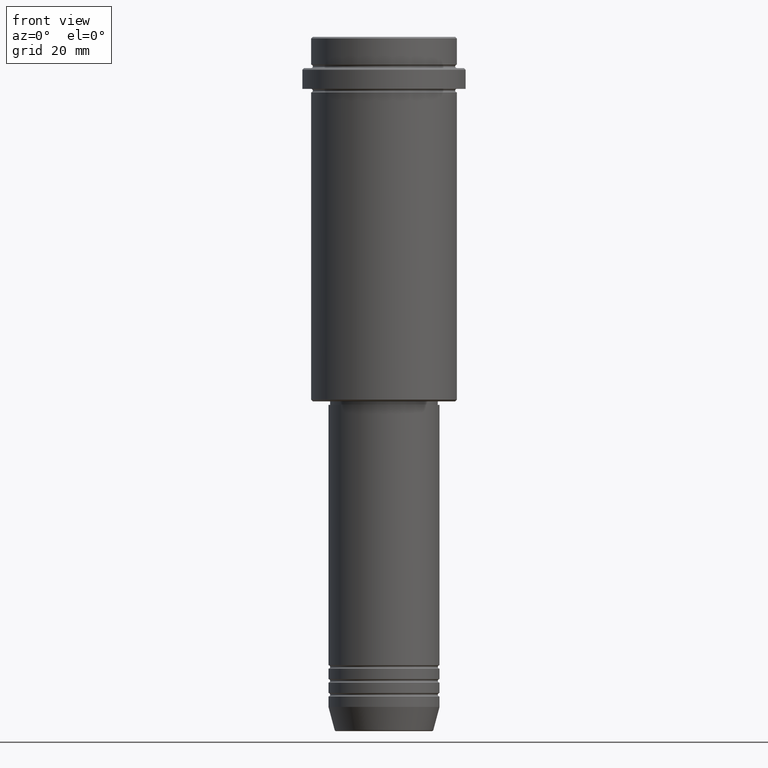
[diagram: clean part render]
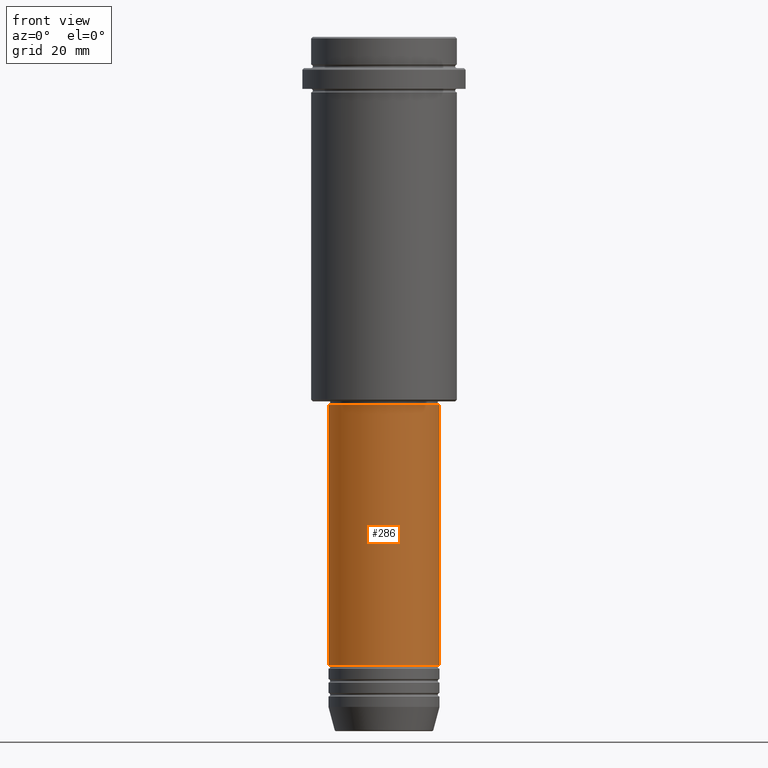
[diagram: same view with one face highlighted and labeled with its STEP entity id]
A machine part, front view. The second image highlights one B-rep face of the part: STEP entity #286.
In plain terms, the highlighted cylindrical surface (partial cylindrical patch) has radius 16 mm, axis along (-0, -0, 1).
Its self-contained STEP definition (entity closure, byte-faithful):
#1 = VERTEX_POINT ( 'NONE', #579 ) ;
#43 = EDGE_CURVE ( 'NONE', #1, #1372, #701, .T. ) ;
#55 = VERTEX_POINT ( 'NONE', #1125 ) ;
#107 = CARTESIAN_POINT ( 'NONE',  ( 0.000000000000000000, 0.000000000000000000, 0.000000000000000000 ) ) ;
#130 = CIRCLE ( 'NONE', #1228, 16.00000000000000000 ) ;
#143 = ORIENTED_EDGE ( 'NONE', *, *, #626, .F. ) ;
#172 = CIRCLE ( 'NONE', #385, 16.00000000000000355 ) ;
#175 = AXIS2_PLACEMENT_3D ( 'NONE', #107, #878, #754 ) ;
#178 = CARTESIAN_POINT ( 'NONE',  ( 16.00000000000000000, 0.000000000000000000, 0.000000000000000000 ) ) ;
#185 = DIRECTION ( 'NONE',  ( -0.000000000000000000, -0.000000000000000000, 1.000000000000000000 ) ) ;
#234 = ORIENTED_EDGE ( 'NONE', *, *, #43, .F. ) ;
#278 = VECTOR ( 'NONE', #477, 1000.000000000000000 ) ;
#286 = ADVANCED_FACE ( 'NONE', ( #1072 ), #1297, .T. ) ;
#385 = AXIS2_PLACEMENT_3D ( 'NONE', #1304, #956, #966 ) ;
#400 = ORIENTED_EDGE ( 'NONE', *, *, #996, .T. ) ;
#467 = CARTESIAN_POINT ( 'NONE',  ( -16.00000000000000000, 1.959434878635765131E-15, 0.000000000000000000 ) ) ;
#477 = DIRECTION ( 'NONE',  ( -0.000000000000000000, -0.000000000000000000, 1.000000000000000000 ) ) ;
#537 = LINE ( 'NONE', #178, #1060 ) ;
#549 = EDGE_LOOP ( 'NONE', ( #234, #400, #1138, #143 ) ) ;
#579 = CARTESIAN_POINT ( 'NONE',  ( -16.00000000000000000, 1.959434878635765131E-15, -180.9999999999998863 ) ) ;
#580 = CARTESIAN_POINT ( 'NONE',  ( -16.00000000000000355, 1.959434878635765526E-15, -106.0000000000000142 ) ) ;
#626 = EDGE_CURVE ( 'NONE', #1372, #55, #172, .T. ) ;
#701 = LINE ( 'NONE', #467, #278 ) ;
#720 = CARTESIAN_POINT ( 'NONE',  ( 0.000000000000000000, 0.000000000000000000, -180.9999999999998863 ) ) ;
#754 = DIRECTION ( 'NONE',  ( 1.000000000000000000, 0.000000000000000000, 0.000000000000000000 ) ) ;
#783 = CARTESIAN_POINT ( 'NONE',  ( 16.00000000000000000, 0.000000000000000000, -180.9999999999998863 ) ) ;
#878 = DIRECTION ( 'NONE',  ( -0.000000000000000000, -0.000000000000000000, 1.000000000000000000 ) ) ;
#936 = DIRECTION ( 'NONE',  ( 1.000000000000000000, 0.000000000000000000, 0.000000000000000000 ) ) ;
#956 = DIRECTION ( 'NONE',  ( -0.000000000000000000, -0.000000000000000000, 1.000000000000000000 ) ) ;
#966 = DIRECTION ( 'NONE',  ( 1.000000000000000000, 0.000000000000000000, 0.000000000000000000 ) ) ;
#996 = EDGE_CURVE ( 'NONE', #1, #1136, #130, .T. ) ;
#1054 = EDGE_CURVE ( 'NONE', #1136, #55, #537, .T. ) ;
#1060 = VECTOR ( 'NONE', #185, 1000.000000000000000 ) ;
#1072 = FACE_OUTER_BOUND ( 'NONE', #549, .T. ) ;
#1125 = CARTESIAN_POINT ( 'NONE',  ( 16.00000000000000355, 0.000000000000000000, -106.0000000000000142 ) ) ;
#1136 = VERTEX_POINT ( 'NONE', #783 ) ;
#1138 = ORIENTED_EDGE ( 'NONE', *, *, #1054, .T. ) ;
#1145 = DIRECTION ( 'NONE',  ( -0.000000000000000000, -0.000000000000000000, 1.000000000000000000 ) ) ;
#1228 = AXIS2_PLACEMENT_3D ( 'NONE', #720, #1145, #936 ) ;
#1297 = CYLINDRICAL_SURFACE ( 'NONE', #175, 16.00000000000000000 ) ;
#1304 = CARTESIAN_POINT ( 'NONE',  ( 0.000000000000000000, 0.000000000000000000, -106.0000000000000142 ) ) ;
#1372 = VERTEX_POINT ( 'NONE', #580 ) ;